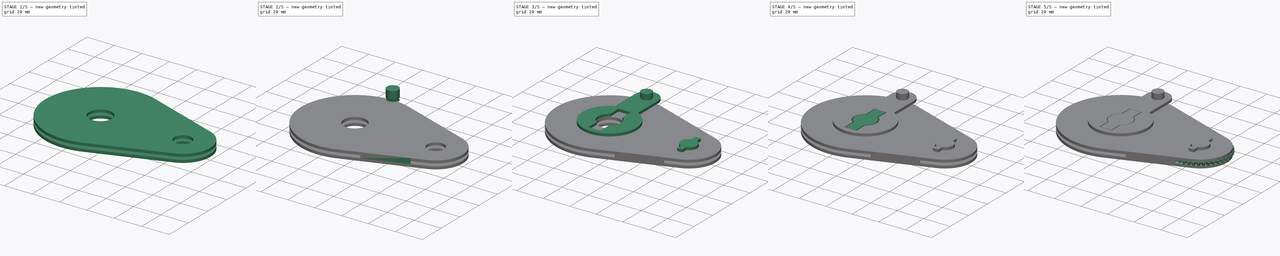
[diagram: build sequence overview — one tinted view per stage of 5, left to right]
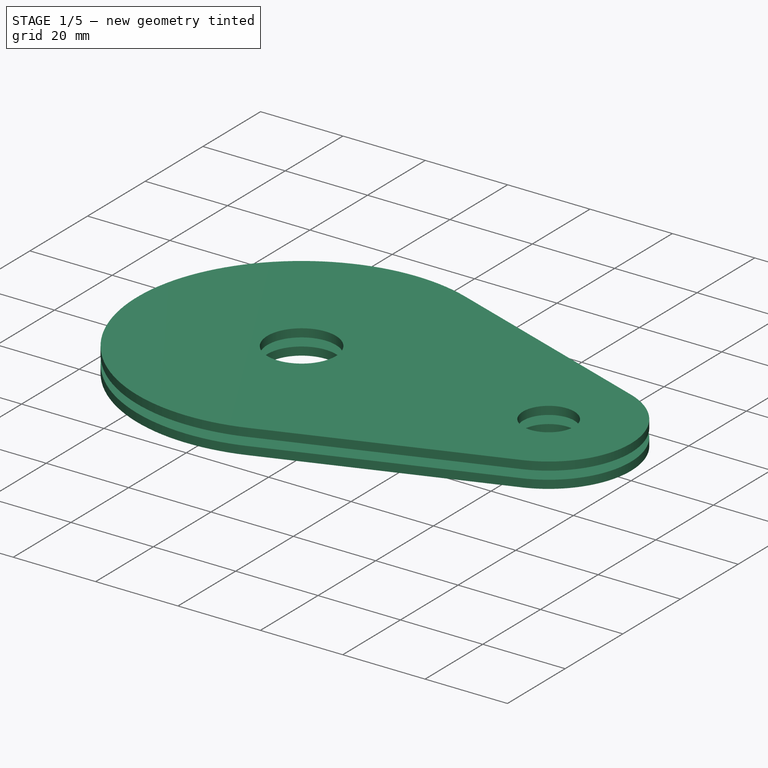
[diagram: stage 1 of 5 — iso view after this stage's code; geometry added in this stage tinted green]
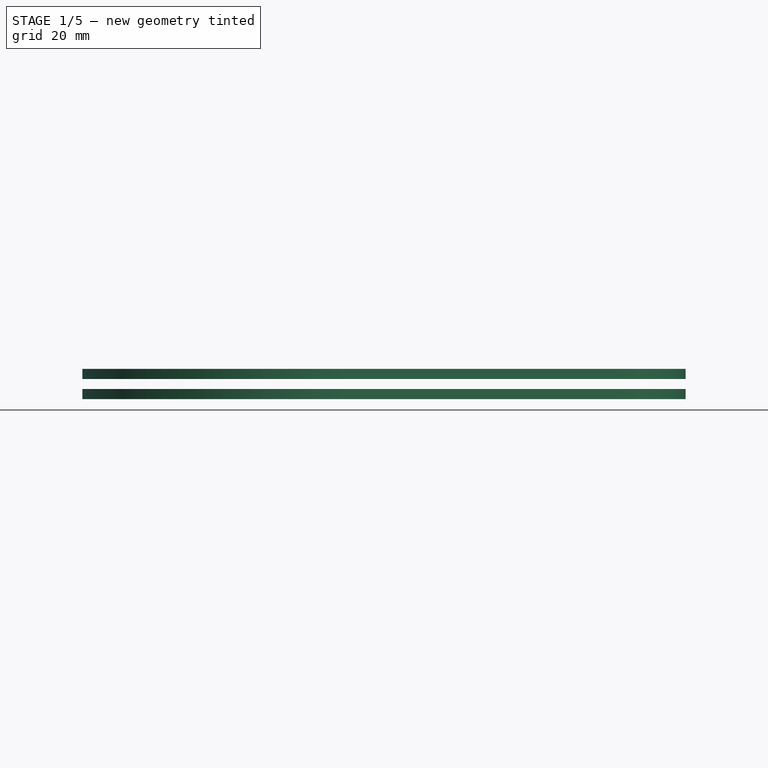
[diagram: stage 1 of 5 — front view after this stage's code; geometry added in this stage tinted green]
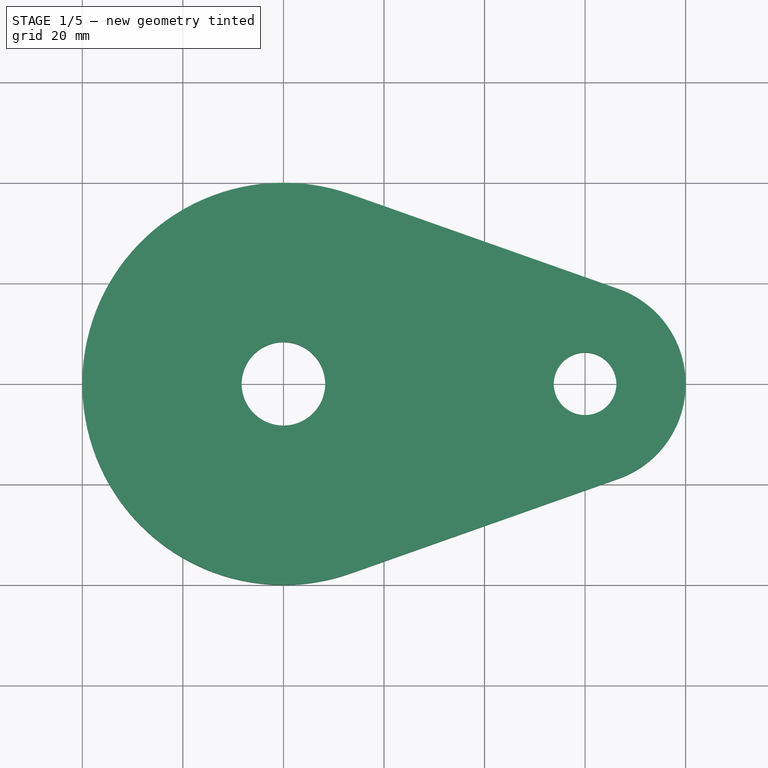
[diagram: stage 1 of 5 — top view after this stage's code; geometry added in this stage tinted green]
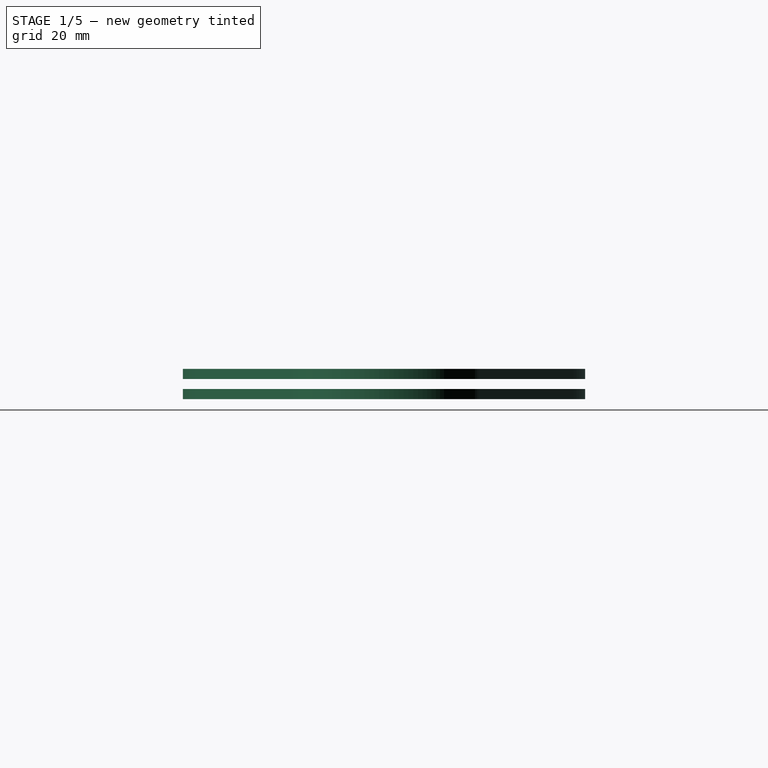
[diagram: stage 1 of 5 — right view after this stage's code; geometry added in this stage tinted green]
FCSTD DOCUMENT  (FreeCAD 0.19R)
Label: ENGRENAGEM-01
License: All rights reserved
LicenseURL: http://en.wikipedia.org/wiki/All_rights_reserved
objects: Sketcher::SketchObject×12, Part::Extrusion×10, Part::FeaturePython×4, Part::Cut×4, Part::MultiFuse×3, Part::Revolution×2, Spreadsheet::Sheet×1
note: 33 computed .brp shape members not serialized (recipe doc carries the construction recipe); baked Part::Feature solids carry a one-line shape summary decoded from their .brp

FEATURE [Spreadsheet::Sheet] Spreadsheet
  cells = A1=Nome; B1(label1)=gear1; C1(label2)=gear2; D1(label3)=furo1; E1(label4)=furo2; F1(label5)=base; G1(label6)=topo; H1(label7)=eixo1; I1(label8)=eixo2; J1(label9)=trava1; K1(label10)=trava2; L1(label11)=manivela; M1=Manopla; B2=1; C2=2; D2=3; E2=4; F2=5; G2=6; H2=7; I2=8; J2=9; K2=10; L2=11; M2=12; A3=Dentes; B3(z1)==d1 * z2 / d2; C3(z2)=40; A4=Diametro; B4(d1)=80; C4(d2)=40; D4(d3)==d1 / 5; E4(d4)==d2 / 5; F4(d5)==d1 + 1; G4(d6)==d2 + 1; H4(d7)==d3; I4(d8)==d4; J4(d9)==d3; K4(d10)==d4; L4(d11)==d3; M4(d12)==d11 / 2; A5=Modulo; B5(m1)==d1 / z1; C5(m2)==d2 / z2; A6=Altura; B6(h1)=2; C6(h2)==h1; D6(h3)==h1; E6(h4)==h1; F6(h5)=2; G6(h6)==h5; H6(h7)==2 * h1 + h5 + h6; I6(h8)==h1 + h5 + h6; J6(h9)==h1; K6(h10)==h2; L6(h11)==h5; M6(h12)==h7; A7=Folga; D7(f3)==camada + d3 * r / 100; E7(f4)==camada + d4 * r / 100; L7(f11)==camada + d11 * r / 100; M7(f12)==camada + d12 * r / 100; A8=Retração%; B8(r)=2; A9=Largura de camada; B9(camada)=0.3
FEATURE [Part::FeaturePython] involutegear  label="gear1"  # WARN: FeaturePython — macro-defined, semantics opaque (R4)
  Placement = pos=(0,0,2) rot=(0,0,1;0rad)
  backlash = 0
  beta = 0
  clearance = 0.25
  double_helix = false
  dw = 80
  head = 0
  height = 2
  module = 1
  numpoints = 6
  pressure_angle = 20
  properties_from_tool = false
  reversed_backlash = false
  shift = 0
  simple = false
  teeth = 80
  transverse_pitch = 3.14159
  undercut = false
  version = 0.0.3
  expr: Label = Spreadsheet.label1
  expr: teeth = Spreadsheet.z1
  expr: module = Spreadsheet.m1
  expr: .Placement.Base.z = Spreadsheet.h5
  expr: height = Spreadsheet.h1
FEATURE [Sketcher::SketchObject] Sketch
  FullyConstrained = true
  expr: Constraints[24] = Spreadsheet.d3 + 2 * Spreadsheet.f3
  expr: Constraints[2] = 2 * (Spreadsheet.d3 + Spreadsheet.f3)
  expr: Constraints[3] = Spreadsheet.d3 / 2 + 2 * Spreadsheet.f3
  sketch-geometry (11):
    g0: LineSegment StartX=-4.62 StartY=16.62 StartZ=0 EndX=4.62 EndY=16.62 EndZ=0
    g1: LineSegment StartX=4.62 StartY=-16.62 StartZ=0 EndX=-4.62 EndY=-16.62 EndZ=0
    g2: LineSegment StartX=-4.62 StartY=-7.27736 StartZ=0 EndX=-4.62 EndY=7.27736 EndZ=0
    g3: LineSegment StartX=4.62 StartY=-7.27736 StartZ=0 EndX=4.62 EndY=7.27736 EndZ=0
    g4: LineSegment StartX=-4.62 StartY=4e-16 StartZ=0 EndX=4.62 EndY=-1e-16 EndZ=0
    g5: ArcOfCircle CenterX=0 CenterY=0 CenterZ=0 NormalX=0 NormalY=0 NormalZ=1 AngleXU=0 Radius=8.62 StartAngle=2.13644 EndAngle=4.14674
    g6: ArcOfCircle CenterX=0 CenterY=0 CenterZ=0 NormalX=0 NormalY=0 NormalZ=1 AngleXU=0 Radius=8.62 StartAngle=5.27804 EndAngle=7.28833
    g7: LineSegment StartX=-4.62 StartY=-7.27736 StartZ=0 EndX=-4.62 EndY=-16.62 EndZ=0
    g8: LineSegment StartX=4.62 StartY=-7.27736 StartZ=0 EndX=4.62 EndY=-16.62 EndZ=0
    g9: LineSegment StartX=4.62 StartY=7.27736 StartZ=0 EndX=4.62 EndY=16.62 EndZ=0
    g10: LineSegment StartX=-4.62 StartY=16.62 StartZ=0 EndX=-4.62 EndY=7.27736 EndZ=0
  constraints (30):
    c: Horizontal(g0)
    c: Horizontal(g1)
    c: DistanceY(g1,g0) = 33.24
    c: DistanceX(g0,g0) = 9.24
    c: Symmetric(g3,g3,g4)
    c: Symmetric(g2,g2,g4)
    c: Equal(g5,g6)
    c: Coincident(g5,g6)
    c: Coincident(g7,g5)
    c: Coincident(g7,g1)
    c: Vertical(g7)
    c: Coincident(g8,g6)
    c: Coincident(g8,g1)
    c: Vertical(g8)
    c: Coincident(g9,g6)
    c: Coincident(g9,g0)
    c: Vertical(g9)
    c: Coincident(g10,g0)
    c: Coincident(g10,g5)
    c: Vertical(g10)
    c: Coincident(g2,g5)
    c: Coincident(g3,g6)
    c: Coincident(g3,g6)
    c: Coincident(g2,g5)
    c: Diameter(g6) = 17.24
    c: Vertical(g3)
    c: Coincident(g5,g-1)
    c: Equal(g8,g7)
    c: Equal(g7,g10)
    c: Equal(g10,g9)
FEATURE [Sketcher::SketchObject] Sketch001
  FullyConstrained = true
  expr: Constraints[38] = 2.5 * (Spreadsheet.d4 + Spreadsheet.f4)
  expr: Constraints[37] = 1.5 * Spreadsheet.d4 + Spreadsheet.f4
  expr: Constraints[2] = (Spreadsheet.d1 + Spreadsheet.d2) / 2
  expr: Constraints[9] = 2 * Spreadsheet.d4 / 4 + Spreadsheet.f4
  sketch-geometry (15):
    g0: LineSegment StartX=0 StartY=0 StartZ=0 EndX=60 EndY=0 EndZ=0
    g1: LineSegment StartX=57.77 StartY=10.575 StartZ=0 EndX=62.23 EndY=10.575 EndZ=0
    g2: LineSegment StartX=57.77 StartY=-10.575 StartZ=0 EndX=57.77 EndY=-5.81722 EndZ=0
    g3: LineSegment StartX=57.77 StartY=5.81722 StartZ=0 EndX=57.77 EndY=10.575 EndZ=0
    g4: ArcOfCircle CenterX=60 CenterY=0 CenterZ=0 NormalX=0 NormalY=0 NormalZ=1 AngleXU=0 Radius=6.23 StartAngle=1.93686 EndAngle=4.34632
    g5: ArcOfCircle CenterX=60 CenterY=0 CenterZ=0 NormalX=0 NormalY=0 NormalZ=1 AngleXU=0 Radius=6.23 StartAngle=5.07846 EndAngle=7.48792
    g6: LineSegment StartX=57.77 StartY=-10.575 StartZ=0 EndX=62.23 EndY=-10.575 EndZ=0
    g7: LineSegment StartX=62.23 StartY=-10.575 StartZ=0 EndX=62.23 EndY=-5.81722 EndZ=0
    g8: LineSegment StartX=62.23 StartY=10.575 StartZ=0 EndX=62.23 EndY=5.81722 EndZ=0
    g9: LineSegment StartX=57.77 StartY=5.81722 StartZ=0 EndX=62.23 EndY=5.81722 EndZ=0
    g10: LineSegment StartX=62.23 StartY=5.81722 StartZ=0 EndX=62.23 EndY=-5.81722 EndZ=0
    g11: LineSegment StartX=62.23 StartY=-5.81722 StartZ=0 EndX=57.77 EndY=-5.81722 EndZ=0
    g12: LineSegment StartX=57.77 StartY=-5.81722 StartZ=0 EndX=57.77 EndY=5.81722 EndZ=0
    g13: LineSegment StartX=60 StartY=5.81722 StartZ=0 EndX=60 EndY=0 EndZ=0
    g14: LineSegment StartX=60 StartY=0 StartZ=0 EndX=60 EndY=-5.81722 EndZ=0
  constraints (39):
    c: Coincident(g0,g-1)
    c: Horizontal(g0)
    c: DistanceX(g0,g0) = 60
    c: Coincident(g3,g1)
    c: Horizontal(g1)
    c: Vertical(g2)
    c: Tangent(g2,g3)
    c: Coincident(g4,g2)
    c: Coincident(g4,g3)
    c: DistanceX(g1,g1) = 4.46
    c: Coincident(g4,g0)
    c: Coincident(g5,g4)
    c: Coincident(g2,g6)
    c: Coincident(g6,g7)
    c: Coincident(g7,g5)
    c: Coincident(g1,g8)
    c: Coincident(g8,g5)
    c: Equal(g7,g2)
    c: Equal(g2,g3)
    c: Equal(g3,g8)
    c: Vertical(g8)
    c: Vertical(g7)
    c: Coincident(g9,g10)
    c: Coincident(g10,g11)
    c: Coincident(g11,g12)
    c: Coincident(g12,g9)
    c: Coincident(g9,g3)
    c: Coincident(g5,g10)
    c: Coincident(g2,g11)
    c: Coincident(g5,g9)
    c: Coincident(g13,g4)
    c: Vertical(g13)
    c: Coincident(g13,g14)
    c: Symmetric(g9,g9,g13)
    c: Symmetric(g11,g11,g14)
    c: Equal(g13,g14)
    c: Block(g5)
    c: Diameter(g5) = 12.46
    c: DistanceY(g6,g1) = 21.15
FEATURE [Part::Extrusion] Extrude  label="Furo1"
  Base = -> Sketch
  Dir = (0,0,1)
  DirMode = 2
  FaceMakerClass = Part::FaceMakerBullseye
  LengthFwd = 2
  LengthRev = 0
  Placement = pos=(0,0,2) rot=(0,0,1;0rad)
  Solid = true
  Symmetric = false
  expr: .Placement.Base.z = Spreadsheet.h5
  expr: LengthFwd = Spreadsheet.h1
FEATURE [Part::Cut] Cut  label="Gear1"
  Base = -> involutegear
  Refine = true
  Tool = -> Extrude
FEATURE [Sketcher::SketchObject] Sketch002
  FullyConstrained = true
  expr: Constraints[2] = Spreadsheet.d2
  expr: Constraints[3] = Spreadsheet.d1
  expr: Constraints[8] = (Spreadsheet.d1 + Spreadsheet.d2) / 2
  expr: Constraints[11] = Spreadsheet.d3 + Spreadsheet.f3
  expr: Constraints[12] = 1.5 * Spreadsheet.d4 + Spreadsheet.f4
  sketch-geometry (6):
    g0: ArcOfCircle CenterX=0 CenterY=0 CenterZ=0 NormalX=0 NormalY=0 NormalZ=1 AngleXU=0 Radius=40 StartAngle=1.23096 EndAngle=5.05223
    g1: ArcOfCircle CenterX=60 CenterY=0 CenterZ=0 NormalX=0 NormalY=0 NormalZ=1 AngleXU=0 Radius=20 StartAngle=5.05223 EndAngle=7.51414
    g2: LineSegment StartX=13.3333 StartY=37.7124 StartZ=0 EndX=66.6667 EndY=18.8562 EndZ=0
    g3: LineSegment StartX=66.6667 StartY=-18.8562 StartZ=0 EndX=13.3333 EndY=-37.7124 EndZ=0
    g4: Circle CenterX=0 CenterY=0 CenterZ=0 NormalX=0 NormalY=0 NormalZ=1 AngleXU=0 Radius=8.31
    g5: Circle CenterX=60 CenterY=0 CenterZ=0 NormalX=0 NormalY=0 NormalZ=1 AngleXU=0 Radius=6.23
  constraints (13):
    c: Coincident(g0,g-1)
    c: PointOnObject(g1,g-1)
    c: Diameter(g1) = 40
    c: Diameter(g0) = 80
    c: Tangent(g1,g3) = 1.5708
    c: Tangent(g1,g2) = 1.5708
    c: Tangent(g2,g0) = 1.5708
    c: Tangent(g3,g0) = 1.5708
    c: DistanceX(g0,g1) = 60
    c: Coincident(g4,g0)
    c: Coincident(g5,g1)
    c: Diameter(g4) = 16.62
    c: Diameter(g5) = 12.46
FEATURE [Part::Extrusion] Extrude002  label="Base"
  Base = -> Sketch002
  Dir = (0,0,1)
  DirMode = 2
  FaceMakerClass = Part::FaceMakerBullseye
  LengthFwd = 2
  LengthRev = 0
  Solid = true
  Symmetric = false
  expr: LengthFwd = Spreadsheet.h5
FEATURE [Sketcher::SketchObject] Sketch003
  FullyConstrained = true
  MapMode = 5
  Placement = pos=(0,0,4) rot=(0,0,1;0rad)
  Support = -> [Cut]
  expr: Constraints[2] = Sketch002.Constraints[2]
  expr: Constraints[3] = Sketch002.Constraints[3]
  expr: Constraints[8] = Sketch002.Constraints[8]
  expr: Constraints[11] = Sketch002.Constraints[11]
  expr: Constraints[12] = Sketch002.Constraints[12]
  sketch-geometry (6):
    g0: ArcOfCircle CenterX=0 CenterY=0 CenterZ=0 NormalX=0 NormalY=0 NormalZ=1 AngleXU=0 Radius=40 StartAngle=1.23096 EndAngle=5.05223
    g1: ArcOfCircle CenterX=60 CenterY=0 CenterZ=0 NormalX=0 NormalY=0 NormalZ=1 AngleXU=0 Radius=20 StartAngle=5.05223 EndAngle=7.51414
    g2: LineSegment StartX=13.3333 StartY=37.7124 StartZ=0 EndX=66.6667 EndY=18.8562 EndZ=0
    g3: LineSegment StartX=66.6667 StartY=-18.8562 StartZ=0 EndX=13.3333 EndY=-37.7124 EndZ=0
    g4: Circle CenterX=0 CenterY=0 CenterZ=0 NormalX=0 NormalY=0 NormalZ=1 AngleXU=0 Radius=8.31
    g5: Circle CenterX=60 CenterY=0 CenterZ=0 NormalX=0 NormalY=0 NormalZ=1 AngleXU=0 Radius=6.23
  constraints (13):
    c: Coincident(g0,g-1)
    c: PointOnObject(g1,g-1)
    c: Diameter(g1) = 40
    c: Diameter(g0) = 80
    c: Tangent(g1,g3) = 1.5708
    c: Tangent(g1,g2) = 1.5708
    c: Tangent(g2,g0) = 1.5708
    c: Tangent(g3,g0) = 1.5708
    c: DistanceX(g0,g1) = 60
    c: Coincident(g4,g0)
    c: Coincident(g5,g1)
    c: Diameter(g4) = 16.62
    c: Diameter(g5) = 12.46
FEATURE [Part::Extrusion] Extrude003  label="Topo"
  Base = -> Sketch003
  Dir = (0,0,1)
  DirMode = 2
  FaceMakerClass = Part::FaceMakerBullseye
  LengthFwd = 2
  LengthRev = 0
  Solid = true
  Symmetric = false
  expr: LengthFwd = Spreadsheet.h6
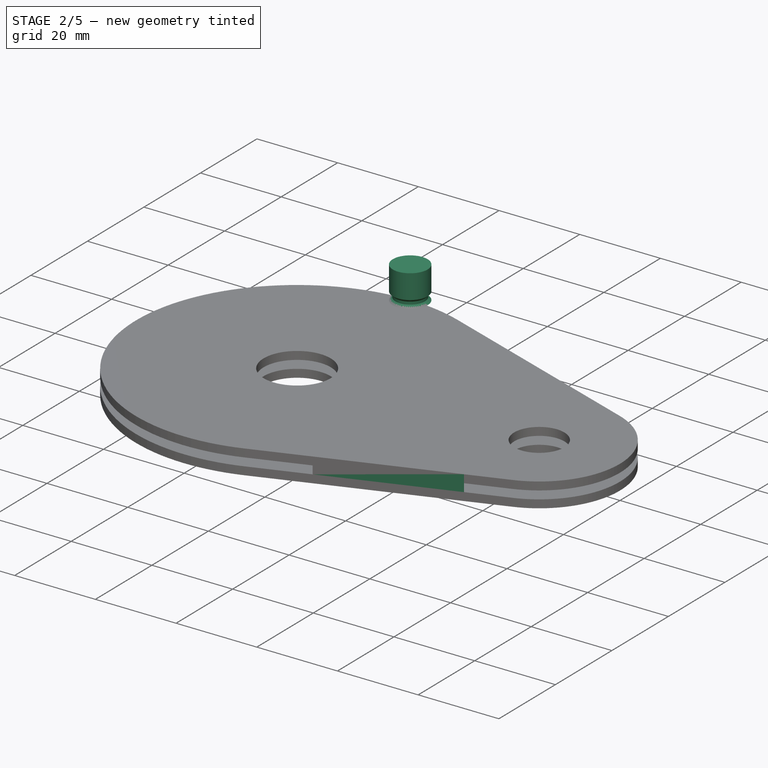
[diagram: stage 2 of 5 — iso view after this stage's code; geometry added in this stage tinted green]
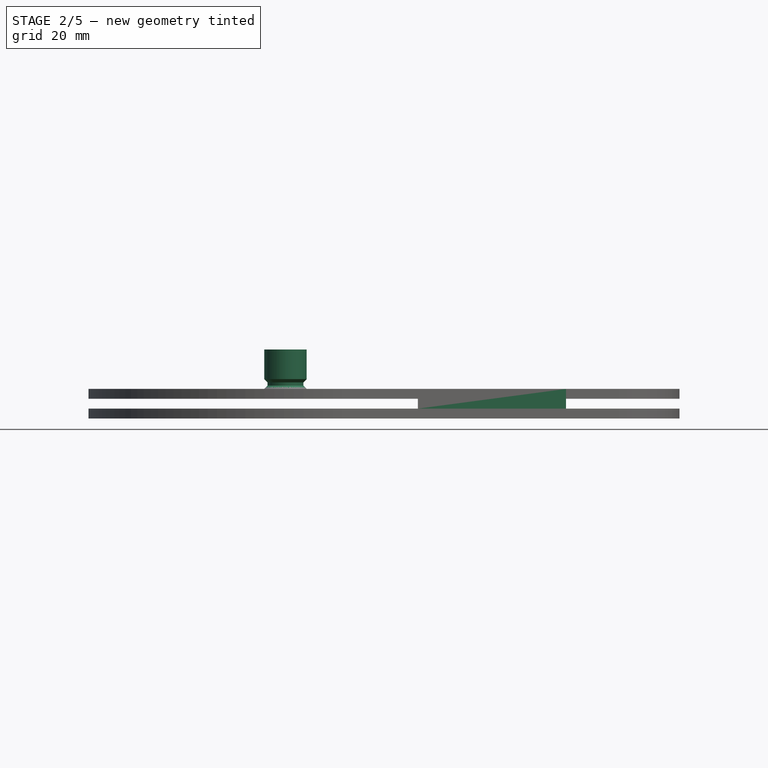
[diagram: stage 2 of 5 — front view after this stage's code; geometry added in this stage tinted green]
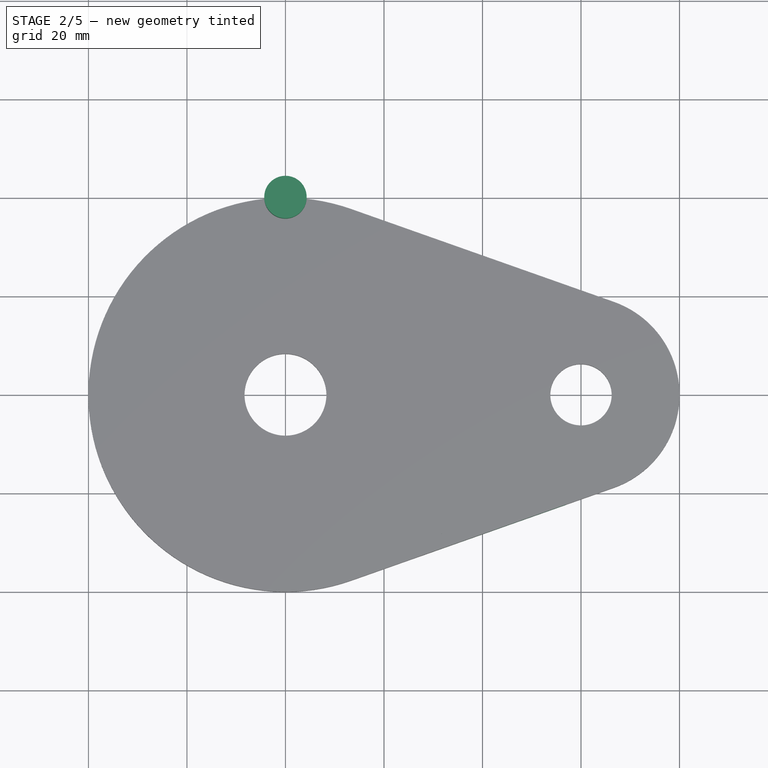
[diagram: stage 2 of 5 — top view after this stage's code; geometry added in this stage tinted green]
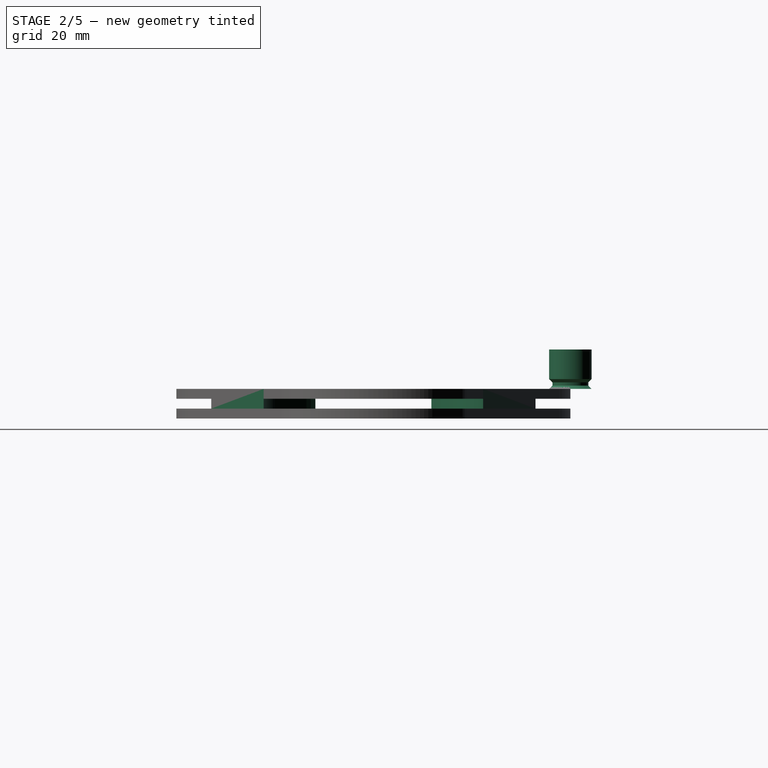
[diagram: stage 2 of 5 — right view after this stage's code; geometry added in this stage tinted green]
FEATURE [Sketcher::SketchObject] Sketch010
  FullyConstrained = true
  Placement = pos=(0,0,0) rot=(0.57735,0.57735,0.57735;2.0944rad)
  expr: Constraints[10] = Spreadsheet.h1 + Spreadsheet.h5 + Spreadsheet.h6
  expr: Constraints[9] = Spreadsheet.d1 / 2
  expr: Constraints[33] = Spreadsheet.h10
  expr: Constraints[34] = Spreadsheet.d11 / 4
  expr: Constraints[47] = 2 * Spreadsheet.h10
  sketch-geometry (17):
    g0: LineSegment StartX=0 StartY=0 StartZ=0 EndX=40 EndY=0 EndZ=0
    g1: LineSegment StartX=40 StartY=0 StartZ=0 EndX=40 EndY=6 EndZ=0
    g2: LineSegment StartX=40 StartY=6 StartZ=0 EndX=0 EndY=6 EndZ=0
    g3: LineSegment StartX=0 StartY=6 StartZ=0 EndX=0 EndY=0 EndZ=0
    g4: LineSegment StartX=40 StartY=6.66667 StartZ=0 EndX=43.3333 EndY=6.66667 EndZ=0
    g5: LineSegment StartX=43.3333 StartY=6.66667 StartZ=0 EndX=43.3333 EndY=7.33333 EndZ=0
    g6: LineSegment StartX=43.3333 StartY=7.33333 StartZ=0 EndX=40 EndY=7.33333 EndZ=0
    g7: LineSegment StartX=43.3333 StartY=7.33333 StartZ=0 EndX=44 EndY=8 EndZ=0
    g8: LineSegment StartX=44 StartY=8 StartZ=0 EndX=40 EndY=8 EndZ=0
    g9: LineSegment StartX=40 StartY=6 StartZ=0 EndX=44 EndY=6 EndZ=0
    g10: LineSegment StartX=44 StartY=6 StartZ=0 EndX=43.3333 EndY=6.66667 EndZ=0
    g11: LineSegment StartX=43.3333 StartY=7.33333 StartZ=0 EndX=43.3333 EndY=8 EndZ=0
    g12: LineSegment StartX=43.3333 StartY=6.66667 StartZ=0 EndX=43.3333 EndY=6 EndZ=0
    g13: LineSegment StartX=44 StartY=8 StartZ=0 EndX=44 EndY=6 EndZ=0
    g14: LineSegment StartX=44 StartY=8 StartZ=0 EndX=44 EndY=12 EndZ=0
    g15: LineSegment StartX=44 StartY=12 StartZ=0 EndX=40 EndY=12 EndZ=0
    g16: LineSegment StartX=40 StartY=12 StartZ=0 EndX=40 EndY=6 EndZ=0
  constraints (48):
    c: Coincident(g0,g1)
    c: Coincident(g1,g2)
    c: Coincident(g2,g3)
    c: Coincident(g3,g0)
    c: Horizontal(g0)
    c: Horizontal(g2)
    c: Vertical(g1)
    c: Vertical(g3)
    c: Coincident(g0,g-1)
    c: DistanceX(g0,g0) = 40
    c: DistanceY(g3,g3) = 6
    c: Coincident(g4,g5)
    c: Coincident(g5,g6)
    c: Horizontal(g4)
    c: Horizontal(g6)
    c: Vertical(g5)
    c: Coincident(g5,g7)
    c: Coincident(g7,g8)
    c: Horizontal(g8)
    c: Horizontal(g9)
    c: Coincident(g9,g10)
    c: Coincident(g10,g4)
    c: Coincident(g11,g5)
    c: PointOnObject(g11,g8)
    c: Vertical(g11)
    c: PointOnObject(g12,g9)
    c: Vertical(g12)
    c: Coincident(g4,g12)
    c: Equal(g12,g5)
    c: Equal(g5,g11)
    c: Coincident(g13,g7)
    c: Coincident(g13,g9)
    c: Vertical(g13)
    c: DistanceY(g1,g8) = 2
    c: DistanceX(g8,g8) = 4
    c: Angle(g7) = 0.785398
    c: Coincident(g7,g14)
    c: Vertical(g14)
    c: Coincident(g14,g15)
    c: Horizontal(g15)
    c: Coincident(g15,g16)
    c: Coincident(g16,g9)
    c: Vertical(g16)
    c: PointOnObject(g6,g16)
    c: PointOnObject(g8,g16)
    c: PointOnObject(g4,g16)
    c: Coincident(g1,g9)
    c: DistanceY(g8,g15) = 4
FEATURE [Sketcher::SketchObject] Sketch011
  FullyConstrained = true
  Placement = pos=(0,0,0) rot=(0.57735,0.57735,0.57735;2.0944rad)
  expr: Constraints[9] = Sketch010.Constraints[9]
  expr: Constraints[10] = Sketch010.Constraints[10]
  expr: Constraints[33] = Sketch010.Constraints[33]
  expr: Constraints[34] = Spreadsheet.d11 / 4 + Spreadsheet.f11 / 2
  expr: Constraints[35] = Sketch010.Constraints[35]
  expr: Constraints[47] = 3 * Sketch010.Constraints[33]
  sketch-geometry (17):
    g0: LineSegment StartX=0 StartY=0 StartZ=0 EndX=40 EndY=0 EndZ=0
    g1: LineSegment StartX=40 StartY=0 StartZ=0 EndX=40 EndY=6 EndZ=0
    g2: LineSegment StartX=40 StartY=6 StartZ=0 EndX=0 EndY=6 EndZ=0
    g3: LineSegment StartX=0 StartY=6 StartZ=0 EndX=0 EndY=0 EndZ=0
    g4: LineSegment StartX=40 StartY=6.66667 StartZ=0 EndX=43.6433 EndY=6.66667 EndZ=0
    g5: LineSegment StartX=43.6433 StartY=6.66667 StartZ=0 EndX=43.6433 EndY=7.33333 EndZ=0
    g6: LineSegment StartX=43.6433 StartY=7.33333 StartZ=0 EndX=40 EndY=7.33333 EndZ=0
    g7: LineSegment StartX=43.6433 StartY=7.33333 StartZ=0 EndX=44.31 EndY=8 EndZ=0
    g8: LineSegment StartX=44.31 StartY=8 StartZ=0 EndX=40 EndY=8 EndZ=0
    g9: LineSegment StartX=40 StartY=6 StartZ=0 EndX=44.31 EndY=6 EndZ=0
    g10: LineSegment StartX=44.31 StartY=6 StartZ=0 EndX=43.6433 EndY=6.66667 EndZ=0
    g11: LineSegment StartX=43.6433 StartY=7.33333 StartZ=0 EndX=43.6433 EndY=8 EndZ=0
    g12: LineSegment StartX=43.6433 StartY=6.66667 StartZ=0 EndX=43.6433 EndY=6 EndZ=0
    g13: LineSegment StartX=44.31 StartY=8 StartZ=0 EndX=44.31 EndY=6 EndZ=0
    g14: LineSegment StartX=44.31 StartY=8 StartZ=0 EndX=44.31 EndY=14 EndZ=0
    g15: LineSegment StartX=44.31 StartY=14 StartZ=0 EndX=40 EndY=14 EndZ=0
    g16: LineSegment StartX=40 StartY=14 StartZ=0 EndX=40 EndY=6 EndZ=0
  constraints (48):
    c: Coincident(g0,g1)
    c: Coincident(g1,g2)
    c: Coincident(g2,g3)
    c: Coincident(g3,g0)
    c: Horizontal(g0)
    c: Horizontal(g2)
    c: Vertical(g1)
    c: Vertical(g3)
    c: Coincident(g0,g-1)
    c: DistanceX(g0,g0) = 40
    c: DistanceY(g3,g3) = 6
    c: Coincident(g4,g5)
    c: Coincident(g5,g6)
    c: Horizontal(g4)
    c: Horizontal(g6)
    c: Vertical(g5)
    c: Coincident(g5,g7)
    c: Coincident(g7,g8)
    c: Horizontal(g8)
    c: Horizontal(g9)
    c: Coincident(g9,g10)
    c: Coincident(g10,g4)
    c: Coincident(g11,g5)
    c: PointOnObject(g11,g8)
    c: Vertical(g11)
    c: PointOnObject(g12,g9)
    c: Vertical(g12)
    c: Coincident(g4,g12)
    c: Equal(g12,g5)
    c: Equal(g5,g11)
    c: Coincident(g13,g7)
    c: Coincident(g13,g9)
    c: Vertical(g13)
    c: DistanceY(g1,g8) = 2
    c: DistanceX(g8,g8) = 4.31
    c: Angle(g7) = 0.785398
    c: Coincident(g7,g14)
    c: Vertical(g14)
    c: Coincident(g14,g15)
    c: Horizontal(g15)
    c: Coincident(g15,g16)
    c: Coincident(g16,g9)
    c: Vertical(g16)
    c: PointOnObject(g6,g16)
    c: PointOnObject(g8,g16)
    c: PointOnObject(g4,g16)
    c: Coincident(g1,g9)
    c: DistanceY(g8,g15) = 6
FEATURE [Part::Revolution] Revolve  label="Manopla"
  Angle = 360
  Axis = (0,0,-1)
  AxisLink = -> Sketch010 [Edge5]
  Base = (0,40,6)
  FaceMakerClass = Part::FaceMakerBullseye
  Solid = true
  Source = -> Sketch011
  Symmetric = false
FEATURE [Sketcher::SketchObject] Sketch012
  ExternalGeometry = -> [Extrude003]
  FullyConstrained = true
  MapMode = 5
  Placement = pos=(0,0,2) rot=(0,0,1;0rad)
  Support = -> [Extrude002]
  expr: Constraints[4] = (Spreadsheet.d1 + Spreadsheet.d2) / 2
  expr: Constraints[5] = Spreadsheet.d1 + 5
  expr: Constraints[6] = Spreadsheet.d2 + 5
  sketch-geometry (7):
    g0: ArcOfCircle CenterX=0 CenterY=0 CenterZ=0 NormalX=0 NormalY=0 NormalZ=1 AngleXU=0 Radius=42.5 StartAngle=5.39693 EndAngle=6.00221
    g1: LineSegment StartX=0 StartY=0 StartZ=0 EndX=60 EndY=0 EndZ=0
    g2: ArcOfCircle CenterX=60 CenterY=0 CenterZ=0 NormalX=0 NormalY=0 NormalZ=1 AngleXU=0 Radius=22.5 StartAngle=1.70684 EndAngle=2.59031
    g3: LineSegment StartX=56.9484 StartY=22.2921 StartZ=0 EndX=26.8734 EndY=32.9252 EndZ=0
    g4: LineSegment StartX=56.9484 StartY=-22.2921 StartZ=0 EndX=26.8734 EndY=-32.9252 EndZ=0
    g5: ArcOfCircle CenterX=60 CenterY=0 CenterZ=0 NormalX=0 NormalY=0 NormalZ=1 AngleXU=0 Radius=22.5 StartAngle=3.69288 EndAngle=4.57634
    g6: ArcOfCircle CenterX=0 CenterY=0 CenterZ=0 NormalX=0 NormalY=0 NormalZ=1 AngleXU=0 Radius=42.5 StartAngle=0.280979 EndAngle=0.886258
  constraints (21):
    c: Coincident(g0,g-1)
    c: Coincident(g1,g-1)
    c: PointOnObject(g1,g-1)
    c: Coincident(g2,g1)
    c: DistanceX(g1,g1) = 60
    c: Diameter(g0) = 85
    c: Diameter(g2) = 45
    c: Coincident(g2,g3)
    c: Coincident(g4,g5)
    c: Coincident(g4,g0)
    c: Equal(g2,g5)
    c: Coincident(g2,g5)
    c: Equal(g0,g6)
    c: Coincident(g6,g2)
    c: Coincident(g0,g6)
    c: Coincident(g0,g5)
    c: Coincident(g3,g6)
    c: PointOnObject(g4,g-4)
    c: PointOnObject(g0,g-4)
    c: PointOnObject(g3,g-3)
    c: PointOnObject(g2,g-3)
FEATURE [Part::Extrusion] Extrude009  label="Juncao"
  Base = -> Sketch012
  Dir = (0,0,1)
  DirMode = 2
  FaceMakerClass = Part::FaceMakerBullseye
  LengthFwd = 4
  LengthRev = 0
  Solid = true
  Symmetric = false
  expr: LengthFwd = Spreadsheet.h6 + Spreadsheet.h2
FEATURE [Part::Cut] Cut003  label="Tampo"
  Base = -> Extrude003
  Refine = true
  Tool = -> Extrude009
FEATURE [Part::MultiFuse] Fusion002  label="Base001"
  Refine = true
  Shapes = -> [Extrude002,Extrude009]
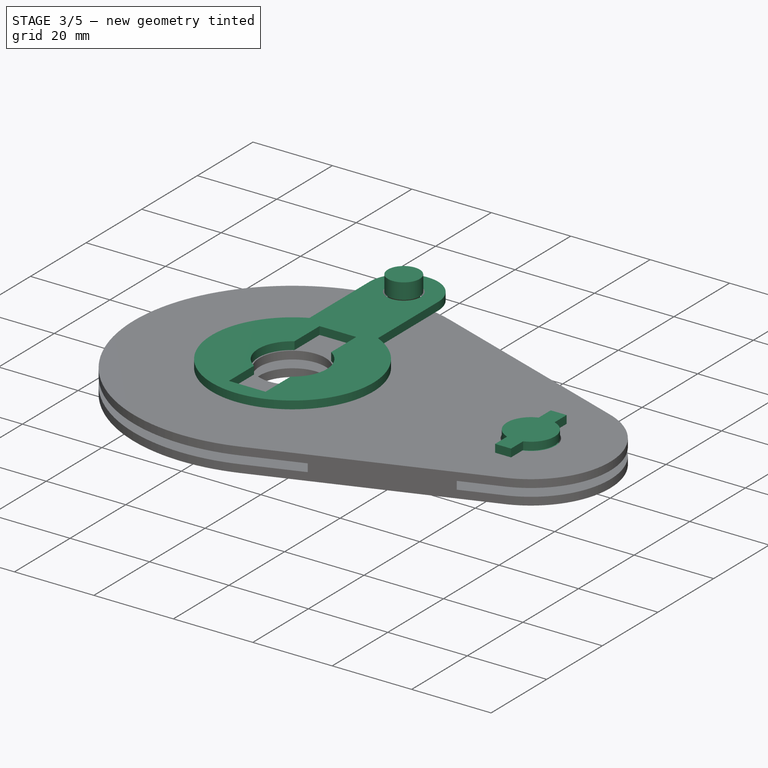
[diagram: stage 3 of 5 — iso view after this stage's code; geometry added in this stage tinted green]
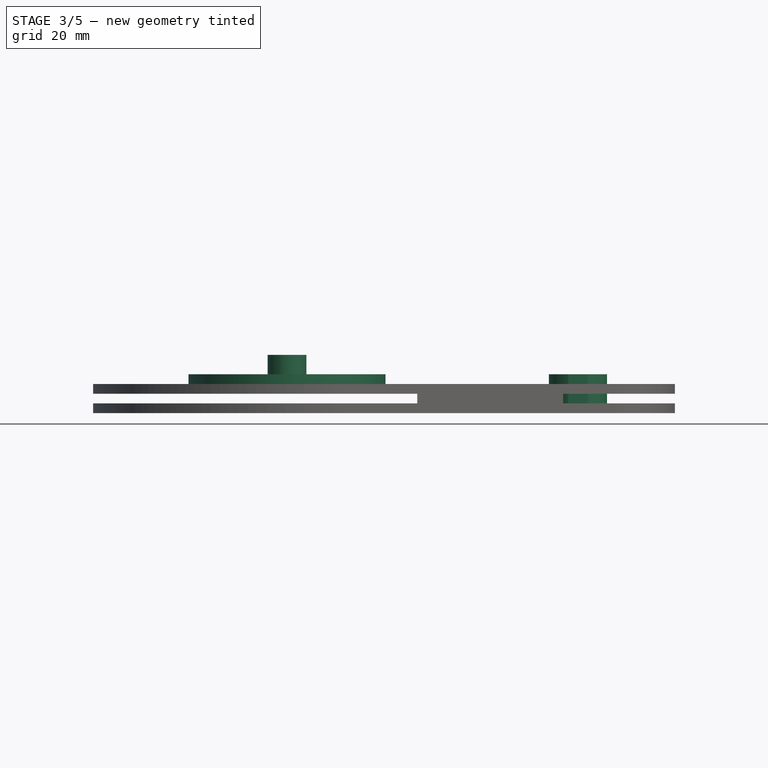
[diagram: stage 3 of 5 — front view after this stage's code; geometry added in this stage tinted green]
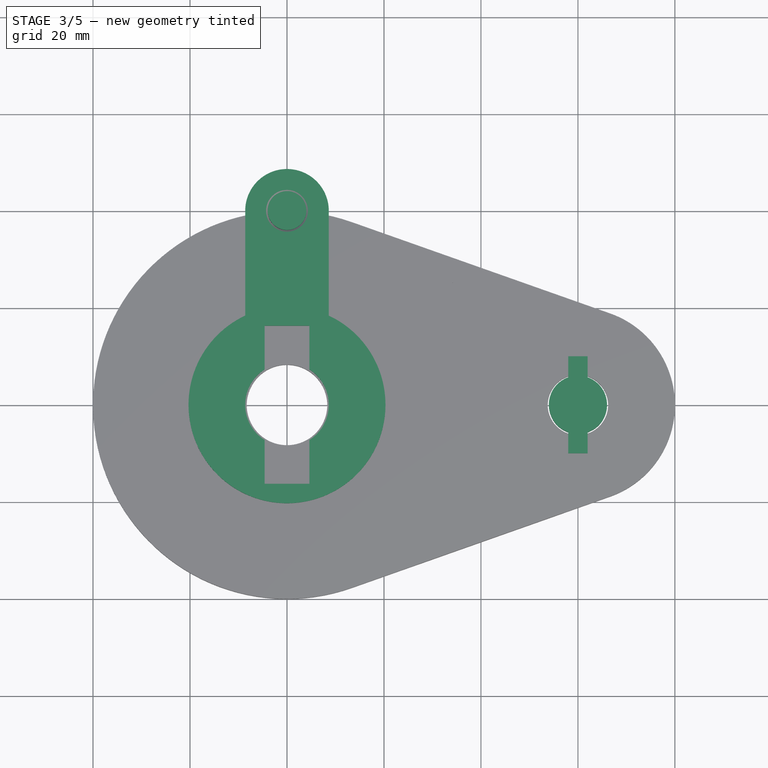
[diagram: stage 3 of 5 — top view after this stage's code; geometry added in this stage tinted green]
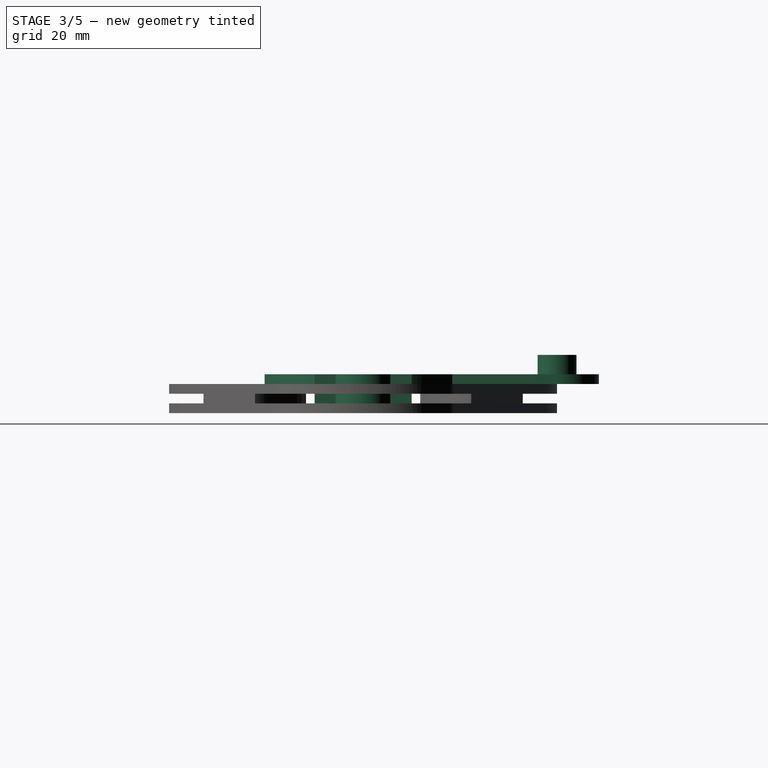
[diagram: stage 3 of 5 — right view after this stage's code; geometry added in this stage tinted green]
FEATURE [Sketcher::SketchObject] Sketch007
  FullyConstrained = true
  MapMode = 5
  Placement = pos=(0,0,2) rot=(0,0,1;0rad)
  Support = -> [Extrude002]
  expr: Constraints[14] = 2.5 * Spreadsheet.d4
  expr: Constraints[4] = Sketch001.Constraints[2]
  expr: Constraints[3] = 1.5 * Spreadsheet.d4
  expr: Constraints[15] = Spreadsheet.d4 / 2
  sketch-geometry (16):
    g0: LineSegment StartX=0 StartY=0 StartZ=0 EndX=60 EndY=0 EndZ=0
    g1: ArcOfCircle CenterX=60 CenterY=0 CenterZ=0 NormalX=0 NormalY=0 NormalZ=1 AngleXU=0 Radius=6 StartAngle=5.05223 EndAngle=7.51414
    g2: LineSegment StartX=58 StartY=10 StartZ=0 EndX=62 EndY=10 EndZ=0
    g3: LineSegment StartX=58 StartY=-10 StartZ=0 EndX=58 EndY=-5.65685 EndZ=0
    g4: LineSegment StartX=58 StartY=-8e-16 StartZ=0 EndX=62 EndY=8e-16 EndZ=0
    g5: LineSegment StartX=62 StartY=-5.65685 StartZ=0 EndX=62 EndY=-10 EndZ=0
    g6: LineSegment StartX=58 StartY=5.65685 StartZ=0 EndX=58 EndY=10 EndZ=0
    g7: LineSegment StartX=62 StartY=5.65685 StartZ=0 EndX=62 EndY=10 EndZ=0
    g8: LineSegment StartX=62 StartY=5.65685 StartZ=0 EndX=58 EndY=5.65685 EndZ=0
    g9: LineSegment StartX=58 StartY=5.65685 StartZ=0 EndX=58 EndY=-5.65685 EndZ=0
    g10: LineSegment StartX=58 StartY=-5.65685 StartZ=0 EndX=62 EndY=-5.65685 EndZ=0
    g11: LineSegment StartX=62 StartY=-5.65685 StartZ=0 EndX=62 EndY=5.65685 EndZ=0
    g12: LineSegment StartX=58 StartY=-10 StartZ=0 EndX=62 EndY=-10 EndZ=0
    g13: ArcOfCircle CenterX=60 CenterY=0 CenterZ=0 NormalX=0 NormalY=0 NormalZ=1 AngleXU=0 Radius=6 StartAngle=1.91063 EndAngle=4.37255
    g14: LineSegment StartX=60 StartY=5.65685 StartZ=0 EndX=60 EndY=0 EndZ=0
    g15: LineSegment StartX=60 StartY=0 StartZ=0 EndX=60 EndY=-5.65685 EndZ=0
  constraints (41):
    c: Coincident(g0,g-1)
    c: Horizontal(g0)
    c: Coincident(g1,g0)
    c: Diameter(g1) = 12
    c: DistanceX(g0,g0) = 60
    c: Coincident(g6,g2)
    c: Horizontal(g2)
    c: Vertical(g3)
    c: Symmetric(g4,g4,g1)
    c: Tangent(g3,g6)
    c: Coincident(g1,g5)
    c: Symmetric(g1,g1,g4)
    c: Symmetric(g6,g3,g4)
    c: Equal(g3,g5)
    c: DistanceY(g5,g2) = 20
    c: DistanceX(g2,g2) = 4
    c: Vertical(g5)
    c: Coincident(g7,g1)
    c: Coincident(g7,g2)
    c: Vertical(g7)
    c: Coincident(g8,g9)
    c: Coincident(g9,g10)
    c: Coincident(g10,g11)
    c: Coincident(g11,g8)
    c: Horizontal(g8)
    c: Coincident(g8,g1)
    c: Coincident(g9,g3)
    c: Coincident(g1,g10)
    c: Coincident(g6,g8)
    c: Coincident(g12,g5)
    c: Coincident(g3,g12)
    c: Equal(g7,g5)
    c: Coincident(g13,g1)
    c: Coincident(g13,g3)
    c: Coincident(g13,g6)
    c: Coincident(g14,g1)
    c: Coincident(g14,g15)
    c: Vertical(g15)
    c: Equal(g15,g14)
    c: Symmetric(g8,g8,g14)
    c: Symmetric(g10,g10,g15)
FEATURE [Part::Extrusion] Extrude007  label="Trava2"
  Base = -> Sketch007
  Dir = (0,0,1)
  DirMode = 2
  FaceMakerClass = Part::FaceMakerBullseye
  LengthFwd = 2
  LengthRev = 0
  Solid = true
  Symmetric = false
  expr: LengthFwd = Spreadsheet.h2
FEATURE [Part::FeaturePython] Array001  # Draft array (typed FeaturePython)
  Angle = 360
  ArrayType = 0
  Axis = (0,0,1)
  Base = -> Extrude007
  Center = (0,0,0)
  Count = 2
  ExpandArray = false
  Fuse = false
  IntervalAxis = (0,0,0)
  IntervalX = (100,0,0)
  IntervalY = (0,100,0)
  IntervalZ = (0,0,4)
  NumberCircles = 3
  NumberPolar = 5
  NumberX = 1
  NumberY = 1
  NumberZ = 2
  PlacementList = 2 placements: [(0,0,0),(0,0,4)]
  RadialDistance = 50
  ScaleList = (2) [(1,1,1),(1,1,1)]
  Symmetry = 1
  TangentialDistance = 25
  expr: .IntervalZ.z = Spreadsheet.h1 + Spreadsheet.h6
FEATURE [Sketcher::SketchObject] Sketch009
  FullyConstrained = true
  MapMode = 5
  Placement = pos=(0,0,6) rot=(0,0,1;0rad)
  Support = -> [Extrude003]
  expr: Constraints[53] = Spreadsheet.d11 + 2 * Spreadsheet.f3
  expr: Constraints[51] = 2.5 * Spreadsheet.d11 + Spreadsheet.f11
  expr: Constraints[12] = 2 * Spreadsheet.d11 + Spreadsheet.f11
  expr: Constraints[45] = Spreadsheet.d1 / 2
  expr: Constraints[13] = Spreadsheet.d3 / 2 + 2 * Spreadsheet.f3
  sketch-geometry (20):
    g0: LineSegment StartX=-8.62 StartY=40 StartZ=0 EndX=-8.62 EndY=18.39 EndZ=0
    g1: LineSegment StartX=8.62 StartY=40 StartZ=0 EndX=8.62 EndY=18.39 EndZ=0
    g2: ArcOfCircle CenterX=0 CenterY=40 CenterZ=0 NormalX=0 NormalY=0 NormalZ=1 AngleXU=0 Radius=8.62 StartAngle=0 EndAngle=3.14159
    g3: LineSegment StartX=8.62 StartY=40 StartZ=0 EndX=0 EndY=40 EndZ=0
    g4: LineSegment StartX=0 StartY=40 StartZ=0 EndX=-8.62 EndY=40 EndZ=0
    g5: LineSegment StartX=-4.62 StartY=16.31 StartZ=0 EndX=4.62 EndY=16.31 EndZ=0
    g6: LineSegment StartX=4.62 StartY=-16.31 StartZ=0 EndX=-4.62 EndY=-16.31 EndZ=0
    g7: LineSegment StartX=-4.62 StartY=-7.27736 StartZ=0 EndX=-4.62 EndY=7.27736 EndZ=0
    g8: LineSegment StartX=4.62 StartY=-7.27736 StartZ=0 EndX=4.62 EndY=7.27736 EndZ=0
    g9: LineSegment StartX=-4.62 StartY=3e-16 StartZ=0 EndX=4.62 EndY=2e-16 EndZ=0
    g10: ArcOfCircle CenterX=0 CenterY=0 CenterZ=0 NormalX=0 NormalY=0 NormalZ=1 AngleXU=0 Radius=8.62 StartAngle=2.13644 EndAngle=4.14674
    g11: ArcOfCircle CenterX=0 CenterY=0 CenterZ=0 NormalX=0 NormalY=0 NormalZ=1 AngleXU=0 Radius=8.62 StartAngle=5.27804 EndAngle=7.28833
    g12: LineSegment StartX=-4.62 StartY=-7.27736 StartZ=0 EndX=-4.62 EndY=-16.31 EndZ=0
    g13: LineSegment StartX=4.62 StartY=-7.27736 StartZ=0 EndX=4.62 EndY=-16.31 EndZ=0
    g14: LineSegment StartX=4.62 StartY=7.27736 StartZ=0 EndX=4.62 EndY=16.31 EndZ=0
    g15: LineSegment StartX=-4.62 StartY=16.31 StartZ=0 EndX=-4.62 EndY=7.27736 EndZ=0
    g16: LineSegment StartX=-8.62 StartY=18.39 StartZ=0 EndX=8.62 EndY=18.39 EndZ=0
    g17: LineSegment StartX=-8.62 StartY=18.39 StartZ=0 EndX=-8.62 EndY=0 EndZ=0
    g18: LineSegment StartX=8.62 StartY=18.39 StartZ=0 EndX=8.62 EndY=0 EndZ=0
    g19: ArcOfCircle CenterX=0 CenterY=0 CenterZ=0 NormalX=0 NormalY=0 NormalZ=1 AngleXU=0 Radius=20.31 StartAngle=2.00912 EndAngle=7.41566
  constraints (54):
    c: Vertical(g0)
    c: Vertical(g1)
    c: Coincident(g2,g1)
    c: Tangent(g2,g0) = -1.5708
    c: Coincident(g1,g3)
    c: Coincident(g3,g2)
    c: Horizontal(g3)
    c: Coincident(g3,g4)
    c: Coincident(g4,g0)
    c: Equal(g3,g4)
    c: Horizontal(g5)
    c: Horizontal(g6)
    c: DistanceY(g6,g5) = 32.62
    c: DistanceX(g5,g5) = 9.24
    c: Symmetric(g8,g8,g9)
    c: Symmetric(g7,g7,g9)
    c: Coincident(g10,g11)
    c: Coincident(g12,g10)
    c: Coincident(g12,g6)
    c: Vertical(g12)
    c: Coincident(g13,g11)
    c: Coincident(g13,g6)
    c: Vertical(g13)
    c: Coincident(g14,g11)
    c: Coincident(g14,g5)
    c: Vertical(g14)
    c: Coincident(g15,g5)
    c: Coincident(g15,g10)
    c: Vertical(g15)
    c: Coincident(g7,g10)
    c: Coincident(g8,g11)
    c: Coincident(g8,g11)
    c: Coincident(g7,g10)
    c: Vertical(g8)
    c: Coincident(g10,g-1)
    c: Equal(g13,g12)
    c: Equal(g12,g15)
    c: Equal(g15,g14)
    c: Horizontal(g16)
    c: Coincident(g17,g16)
    c: Coincident(g18,g16)
    c: Vertical(g18)
    c: Equal(g10,g2)
    c: Tangent(g17,g10) = -1.5708
    c: Tangent(g18,g11) = 1.5708
    c: DistanceY(g10,g2) = 40
    c: Coincident(g19,g10)
    c: Coincident(g19,g0)
    c: Coincident(g19,g1)
    c: Coincident(g0,g16)
    c: Coincident(g1,g16)
    c: Diameter(g19) = 40.62
    c: Equal(g10,g11)
    c: Diameter(g11) = 17.24
FEATURE [Part::Extrusion] Extrude008  label="Manivela"
  Base = -> Sketch009
  Dir = (0,0,1)
  DirMode = 2
  FaceMakerClass = Part::FaceMakerBullseye
  LengthFwd = 2
  LengthRev = 0
  Solid = true
  Symmetric = false
  expr: LengthFwd = Spreadsheet.h4
FEATURE [Part::Revolution] Revolve001  label="Manopla-subtracao"
  Angle = 360
  Axis = (0,0,-1)
  AxisLink = -> Sketch010 [Edge5]
  Base = (0,40,6)
  FaceMakerClass = Part::FaceMakerBullseye
  Solid = true
  Source = -> Sketch010
  Symmetric = false
FEATURE [Part::Cut] Cut002  label="Manivela001"
  Base = -> Extrude008
  Refine = true
  Tool = -> Revolve
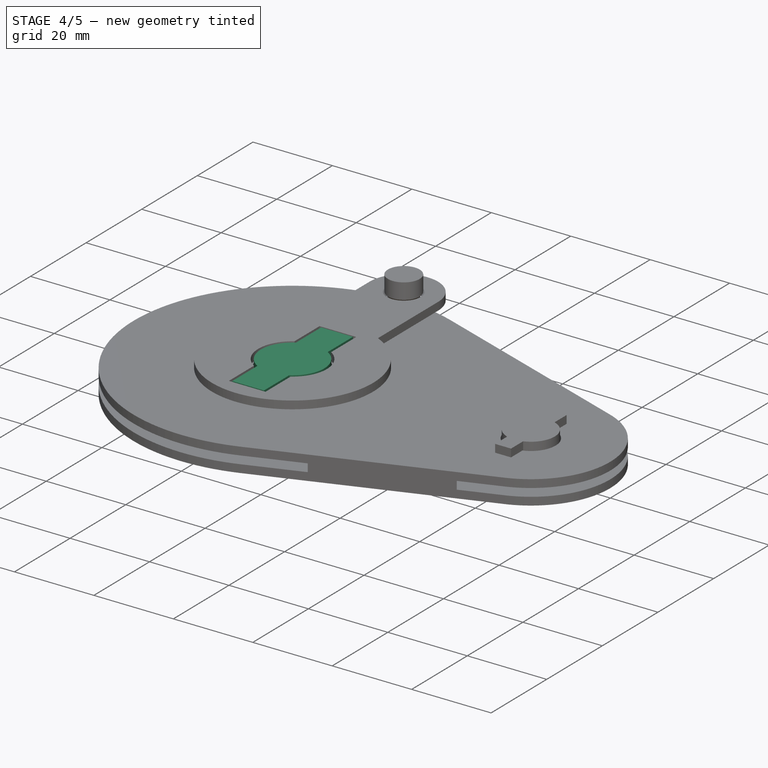
[diagram: stage 4 of 5 — iso view after this stage's code; geometry added in this stage tinted green]
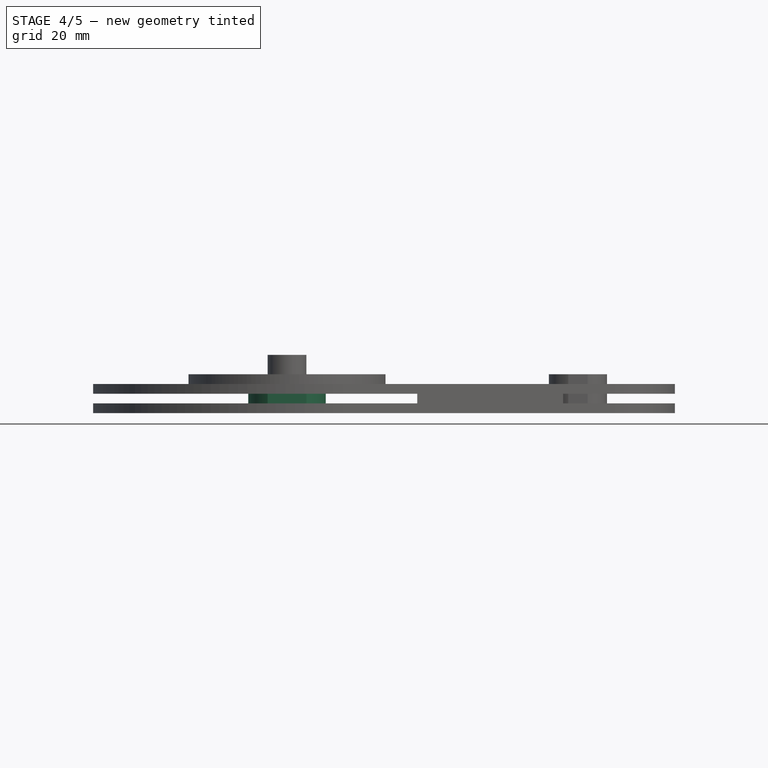
[diagram: stage 4 of 5 — front view after this stage's code; geometry added in this stage tinted green]
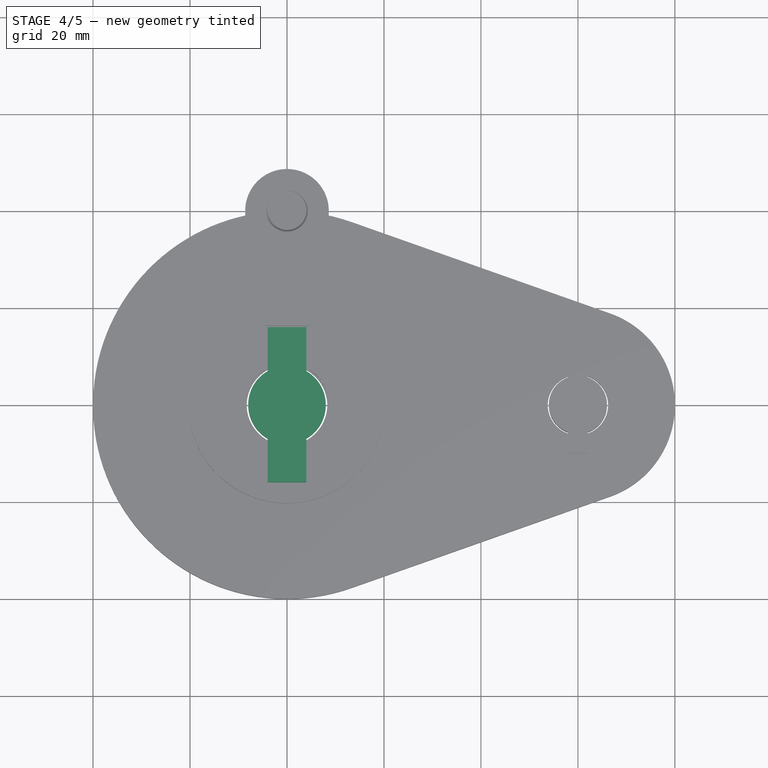
[diagram: stage 4 of 5 — top view after this stage's code; geometry added in this stage tinted green]
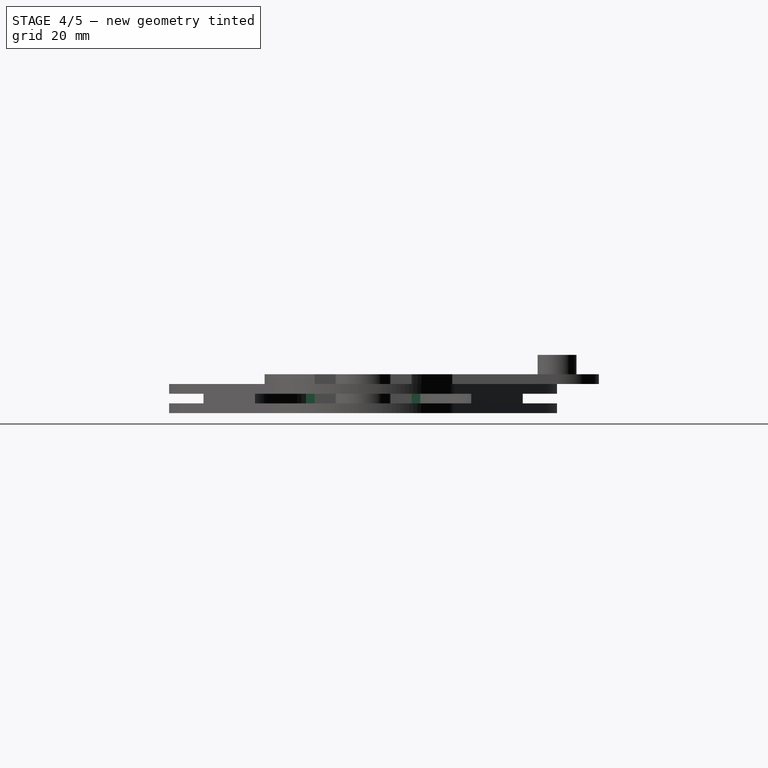
[diagram: stage 4 of 5 — right view after this stage's code; geometry added in this stage tinted green]
FEATURE [Sketcher::SketchObject] Sketch005
  FullyConstrained = true
  MapMode = 5
  Placement = pos=(0,0,2) rot=(0,0,1;0rad)
  Support = -> [Extrude002]
  expr: Constraints[24] = Spreadsheet.d3
  expr: Constraints[3] = Spreadsheet.d3 / 2
  expr: Constraints[2] = 2 * Spreadsheet.d9
  sketch-geometry (11):
    g0: LineSegment StartX=-4 StartY=16 StartZ=0 EndX=4 EndY=16 EndZ=0
    g1: LineSegment StartX=4 StartY=-16 StartZ=0 EndX=-4 EndY=-16 EndZ=0
    g2: LineSegment StartX=-4 StartY=-6.9282 StartZ=0 EndX=-4 EndY=6.9282 EndZ=0
    g3: LineSegment StartX=4 StartY=-6.9282 StartZ=0 EndX=4 EndY=6.9282 EndZ=0
    g4: LineSegment StartX=-4 StartY=3e-16 StartZ=0 EndX=4 EndY=4e-16 EndZ=0
    g5: ArcOfCircle CenterX=0 CenterY=0 CenterZ=0 NormalX=0 NormalY=0 NormalZ=1 AngleXU=0 Radius=8 StartAngle=2.0944 EndAngle=4.18879
    g6: ArcOfCircle CenterX=0 CenterY=0 CenterZ=0 NormalX=0 NormalY=0 NormalZ=1 AngleXU=0 Radius=8 StartAngle=5.23599 EndAngle=7.33038
    g7: LineSegment StartX=-4 StartY=-6.9282 StartZ=0 EndX=-4 EndY=-16 EndZ=0
    g8: LineSegment StartX=4 StartY=-6.9282 StartZ=0 EndX=4 EndY=-16 EndZ=0
    g9: LineSegment StartX=4 StartY=6.9282 StartZ=0 EndX=4 EndY=16 EndZ=0
    g10: LineSegment StartX=-4 StartY=16 StartZ=0 EndX=-4 EndY=6.9282 EndZ=0
  constraints (30):
    c: Horizontal(g0)
    c: Horizontal(g1)
    c: DistanceY(g1,g0) = 32
    c: DistanceX(g0,g0) = 8
    c: Symmetric(g3,g3,g4)
    c: Symmetric(g2,g2,g4)
    c: Equal(g5,g6)
    c: Coincident(g5,g6)
    c: Coincident(g7,g5)
    c: Coincident(g7,g1)
    c: Vertical(g7)
    c: Coincident(g8,g6)
    c: Coincident(g8,g1)
    c: Vertical(g8)
    c: Coincident(g9,g6)
    c: Coincident(g9,g0)
    c: Vertical(g9)
    c: Coincident(g10,g0)
    c: Coincident(g10,g5)
    c: Vertical(g10)
    c: Coincident(g2,g5)
    c: Coincident(g3,g6)
    c: Coincident(g3,g6)
    c: Coincident(g2,g5)
    c: Diameter(g6) = 16
    c: Vertical(g3)
    c: Coincident(g5,g-1)
    c: Equal(g8,g7)
    c: Equal(g7,g10)
    c: Equal(g10,g9)
FEATURE [Part::Extrusion] Extrude005  label="Trava1"
  Base = -> Sketch005
  Dir = (0,0,1)
  DirMode = 2
  FaceMakerClass = Part::FaceMakerBullseye
  LengthFwd = 2
  LengthRev = 0
  Solid = true
  Symmetric = false
  expr: LengthFwd = Spreadsheet.h3
FEATURE [Sketcher::SketchObject] Sketch006
  FullyConstrained = true
  expr: Constraints[4] = (Spreadsheet.d1 + Spreadsheet.d2) / 2
  expr: Constraints[3] = 1.5 * Spreadsheet.d8
  sketch-geometry (2):
    g0: Circle CenterX=60 CenterY=0 CenterZ=0 NormalX=0 NormalY=0 NormalZ=1 AngleXU=0 Radius=6
    g1: LineSegment StartX=60 StartY=0 StartZ=0 EndX=0 EndY=0 EndZ=0
  constraints (5):
    c: PointOnObject(g0,g-1)
    c: Coincident(g1,g0)
    c: Coincident(g1,g-1)
    c: Diameter(g0) = 12
    c: DistanceX(g1,g1) = 60
FEATURE [Part::Extrusion] Extrude006  label="Eixo2"
  Base = -> Sketch006
  Dir = (0,0,1)
  DirMode = 2
  FaceMakerClass = Part::FaceMakerBullseye
  LengthFwd = 6
  LengthRev = 0
  Solid = true
  Symmetric = false
  expr: LengthFwd = Spreadsheet.h8
FEATURE [Part::FeaturePython] Array  # Draft array (typed FeaturePython)
  Angle = 360
  ArrayType = 0
  Axis = (0,0,1)
  Base = -> Extrude005
  Center = (0,0,0)
  Count = 2
  ExpandArray = false
  Fuse = false
  IntervalAxis = (0,0,0)
  IntervalX = (100,0,0)
  IntervalY = (0,100,0)
  IntervalZ = (0,0,4)
  NumberCircles = 3
  NumberPolar = 5
  NumberX = 1
  NumberY = 1
  NumberZ = 2
  PlacementList = 2 placements: [(0,0,0),(0,0,4)]
  RadialDistance = 50
  ScaleList = (2) [(1,1,1),(1,1,1)]
  Symmetry = 1
  TangentialDistance = 25
  expr: .IntervalZ.z = Spreadsheet.h1 + Spreadsheet.h6
FEATURE [Part::MultiFuse] Fusion  label="Eixo Menor"
  Refine = true
  Shapes = -> [Array001,Extrude006]
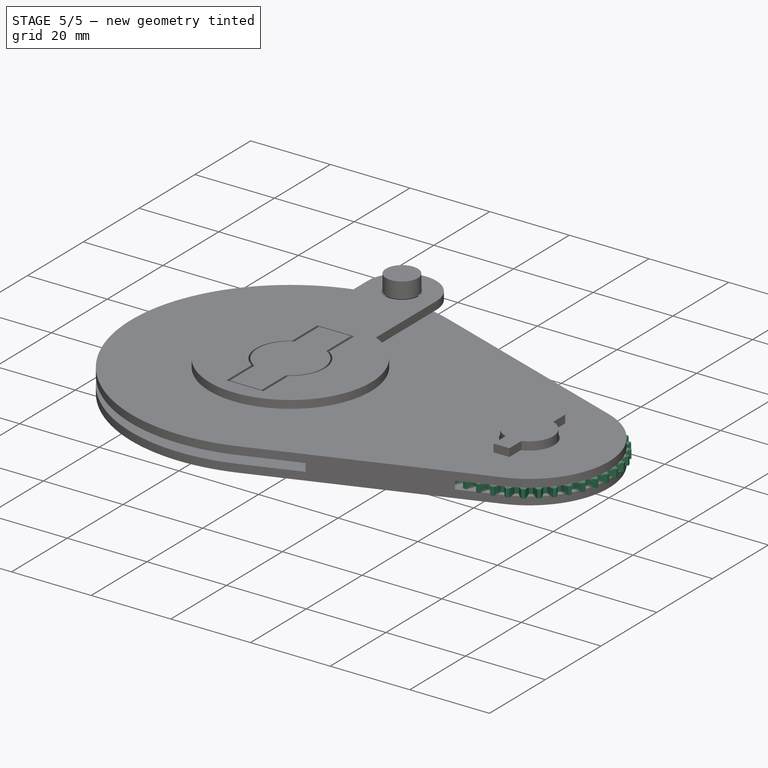
[diagram: stage 5 of 5 — iso view after this stage's code; geometry added in this stage tinted green]
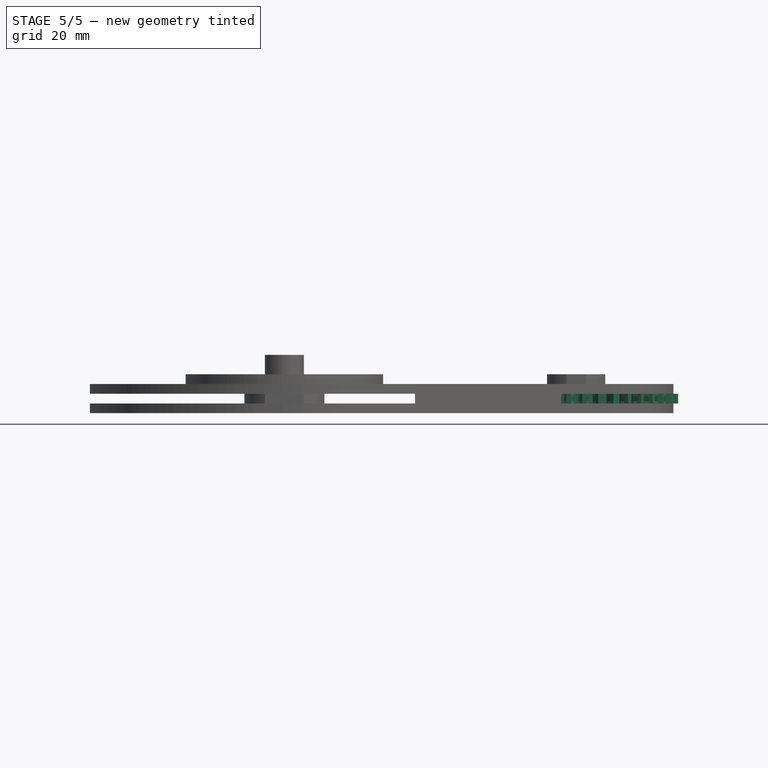
[diagram: stage 5 of 5 — front view after this stage's code; geometry added in this stage tinted green]
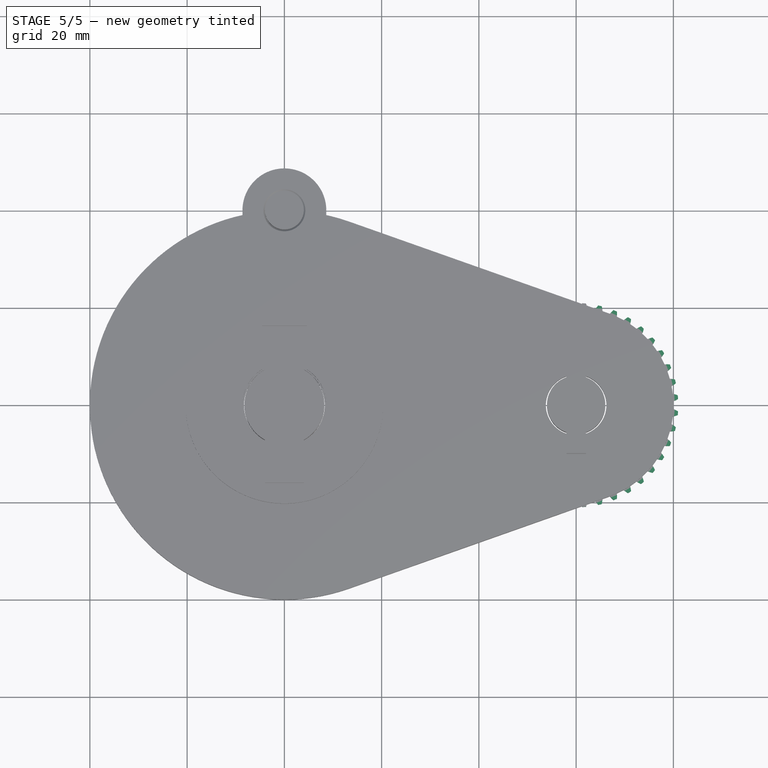
[diagram: stage 5 of 5 — top view after this stage's code; geometry added in this stage tinted green]
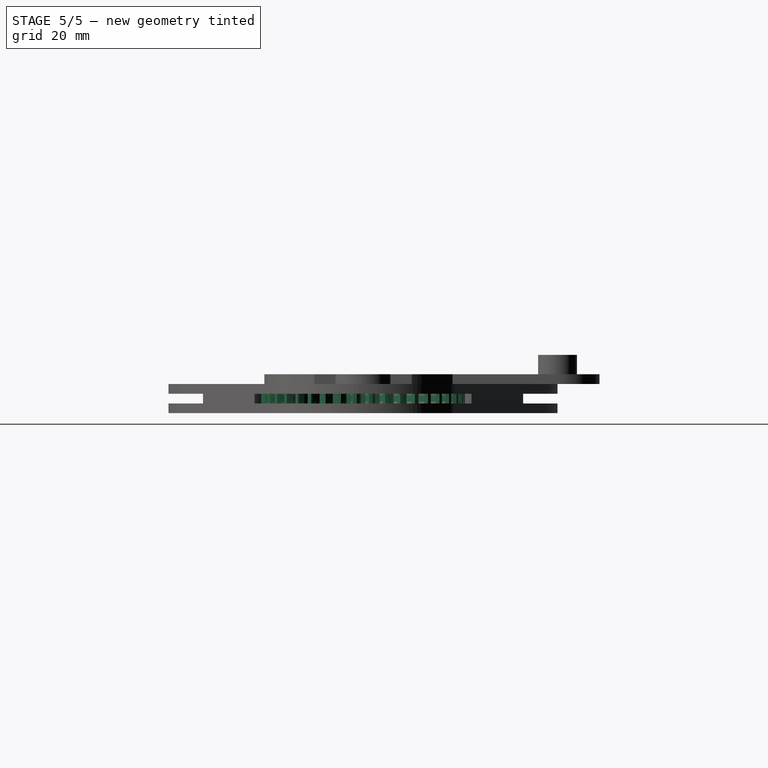
[diagram: stage 5 of 5 — right view after this stage's code; geometry added in this stage tinted green]
FEATURE [Part::FeaturePython] involutegear001  label="gear2"  # WARN: FeaturePython — macro-defined, semantics opaque (R4)
  Placement = pos=(60,0,2) rot=(0,0,1;0.07854rad)
  backlash = 0
  beta = 0
  clearance = 0.25
  double_helix = false
  dw = 40
  head = 0
  height = 2
  module = 1
  numpoints = 6
  pressure_angle = 20
  properties_from_tool = false
  reversed_backlash = false
  shift = 0
  simple = false
  teeth = 40
  transverse_pitch = 3.14159
  undercut = false
  version = 0.0.3
  expr: Label = Spreadsheet.label2
  expr: .Placement.Base.x = (Spreadsheet.d1 + Spreadsheet.d2) / 2
  expr: teeth = Spreadsheet.z2
  expr: module = Spreadsheet.m2
  expr: .Placement.Rotation.Angle = 360 / (2 * Spreadsheet.z2)
  expr: height = Spreadsheet.h2
  expr: .Placement.Base.z = Spreadsheet.h5
FEATURE [Part::Extrusion] Extrude001  label="Furo2"
  Base = -> Sketch001
  Dir = (0,0,1)
  DirMode = 2
  FaceMakerClass = Part::FaceMakerBullseye
  LengthFwd = 2
  LengthRev = 0
  Placement = pos=(0,0,2) rot=(0,0,1;0rad)
  Solid = true
  Symmetric = false
  expr: .Placement.Base.z = Spreadsheet.h5
  expr: LengthFwd = Spreadsheet.h2
FEATURE [Part::Cut] Cut001  label="Gear2"
  Base = -> involutegear001
  Refine = true
  Tool = -> Extrude001
FEATURE [Sketcher::SketchObject] Sketch004
  FullyConstrained = true
  expr: Constraints[1] = Spreadsheet.d7 + Spreadsheet.f4
  sketch-geometry (1):
    g0: Circle CenterX=0 CenterY=0 CenterZ=0 NormalX=0 NormalY=0 NormalZ=1 AngleXU=0 Radius=8.23
  constraints (2):
    c: Coincident(g0,g-1)
    c: Diameter(g0) = 16.46
FEATURE [Part::Extrusion] Extrude004  label="Eixo1"
  Base = -> Sketch004
  Dir = (0,0,1)
  DirMode = 2
  FaceMakerClass = Part::FaceMakerBullseye
  LengthFwd = 8
  LengthRev = 0
  Solid = true
  Symmetric = false
  expr: LengthFwd = Spreadsheet.h7
FEATURE [Part::MultiFuse] Fusion001  label="Eixo Maior"
  Refine = true
  Shapes = -> [Array,Extrude004]
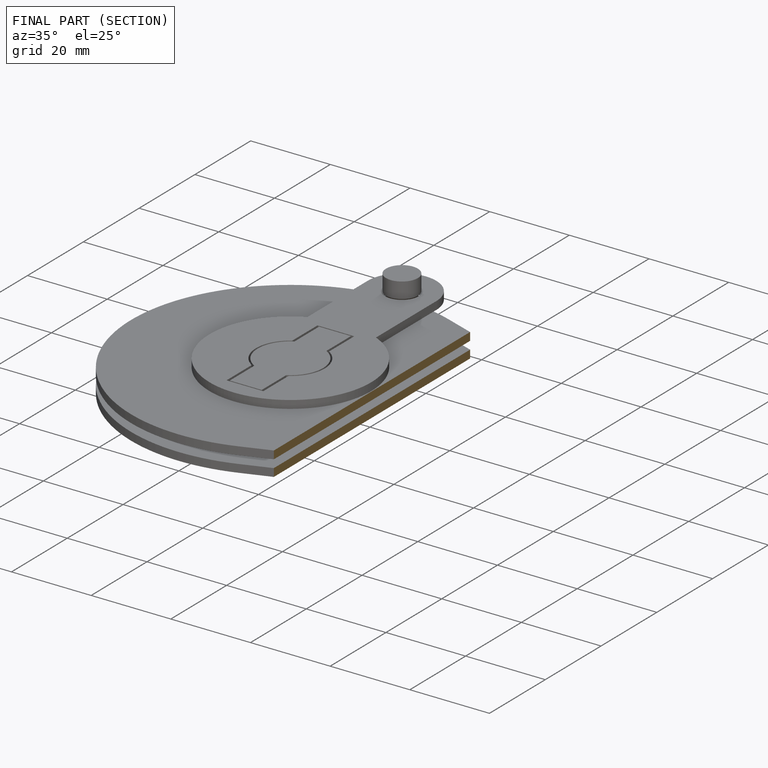
[diagram: finished part — half-section view (interior)]
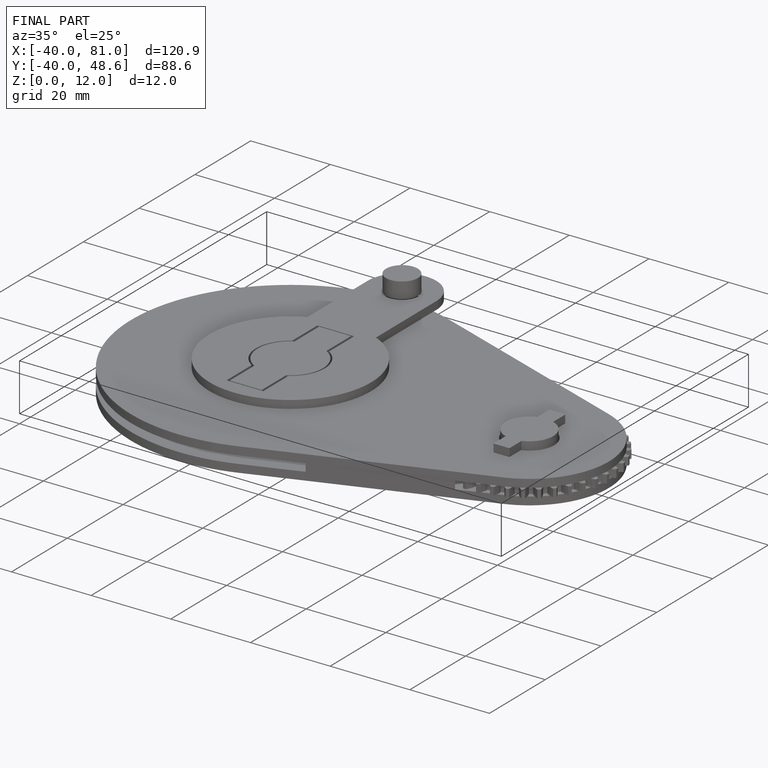
[diagram: finished part — iso view with bounding-box wireframe]
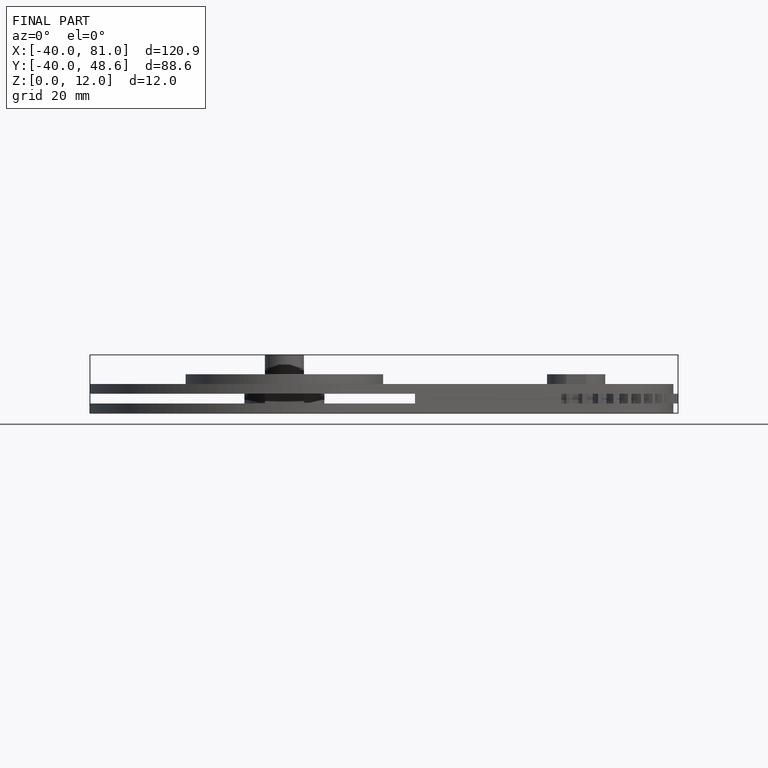
[diagram: finished part — front view with bounding-box wireframe]
